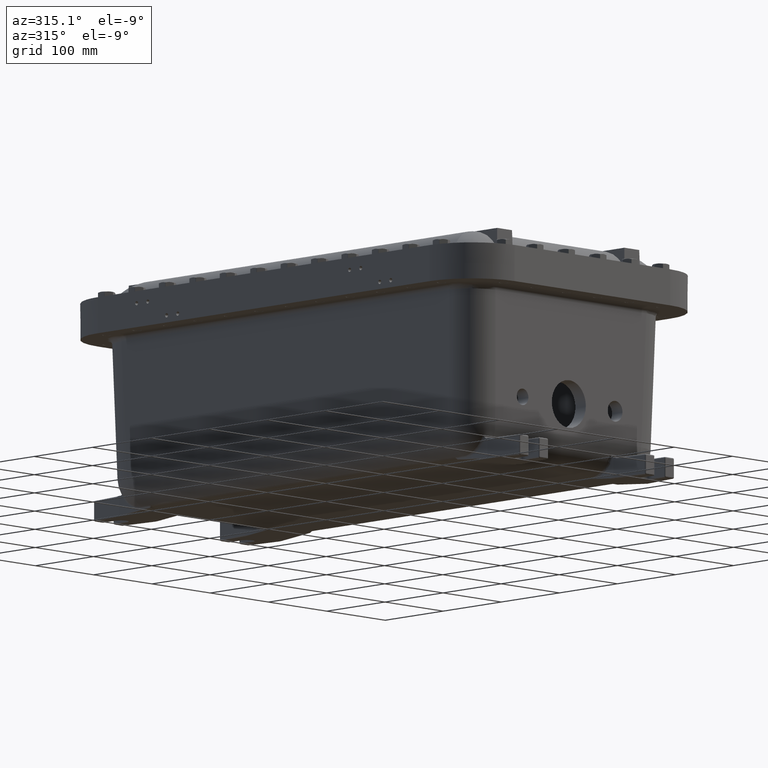
[diagram: clean part render]
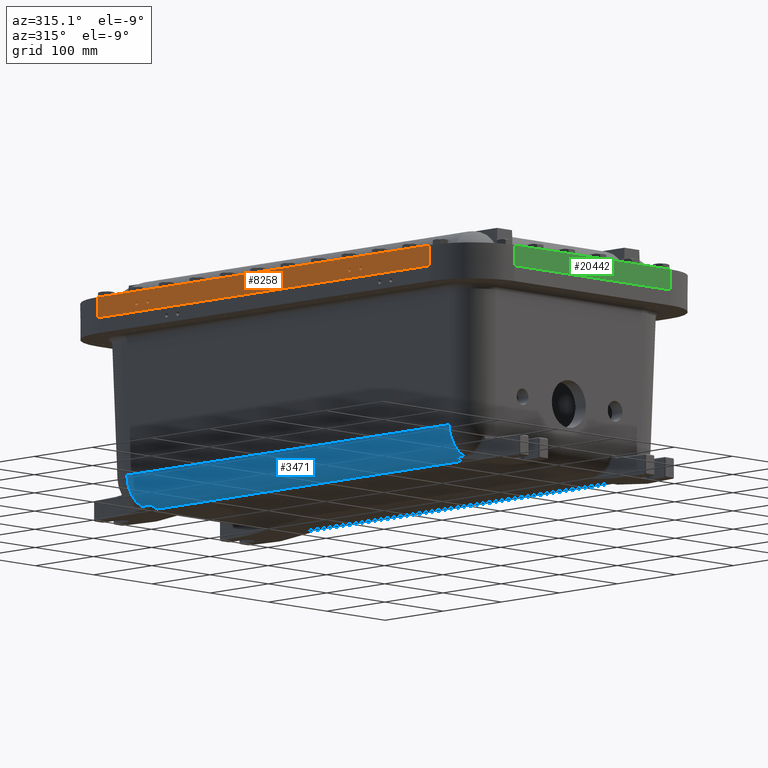
[diagram: same view with three faces highlighted in distinct colors, each labeled with its STEP entity id]
A machine part, auxiliary view with three faces highlighted in distinct colors.
Their STEP definitions:

[orange] entity #8258 — the highlighted planar face has unit normal (-1, 0, 0).
#140 = EDGE_CURVE ( 'NONE', #4846, #16602, #10648, .T. ) ;
#264 = CARTESIAN_POINT ( 'NONE',  ( 8.124700000000002500, -11.25000000000000200, 0.9972578958968254500 ) ) ;
#555 = B_SPLINE_CURVE_WITH_KNOTS ( 'NONE', 3,
 ( #22166, #28860, #10847, #8667 ),
 .UNSPECIFIED., .F., .F.,
 ( 4, 4 ),
 ( 5.551115123125782700E-017, 0.0006411872042488288800 ),
 .UNSPECIFIED. ) ;
#590 = VERTEX_POINT ( 'NONE', #2387 ) ;
#604 = EDGE_CURVE ( 'NONE', #20435, #8030, #28193, .T. ) ;
#630 = ORIENTED_EDGE ( 'NONE', *, *, #1082, .T. ) ;
#637 = LINE ( 'NONE', #9227, #17904 ) ;
#729 = CARTESIAN_POINT ( 'NONE',  ( 8.124700000000002500, -8.609999999999999400, 0.3080499999999987700 ) ) ;
#1082 = EDGE_CURVE ( 'NONE', #20368, #26079, #12315, .T. ) ;
#1127 = DIRECTION ( 'NONE',  ( 1.000000000000000000, 0.0000000000000000000, 0.0000000000000000000 ) ) ;
#1253 = ORIENTED_EDGE ( 'NONE', *, *, #2989, .F. ) ;
#1341 = ORIENTED_EDGE ( 'NONE', *, *, #28760, .T. ) ;
#1346 = EDGE_LOOP ( 'NONE', ( #7888, #13123 ) ) ;
#1383 = DIRECTION ( 'NONE',  ( -1.000000000000000000, -0.0000000000000000000, -0.0000000000000000000 ) ) ;
#1535 = VERTEX_POINT ( 'NONE', #15394 ) ;
#1922 = EDGE_CURVE ( 'NONE', #8030, #1535, #637, .T. ) ;
#1999 = CIRCLE ( 'NONE', #10900, 0.09794999999999998200 ) ;
#2387 = CARTESIAN_POINT ( 'NONE',  ( 8.124700000000002500, 6.578000000000000300, 0.5039500000000017900 ) ) ;
#2989 = EDGE_CURVE ( 'NONE', #14222, #20435, #555, .T. ) ;
#3043 = CARTESIAN_POINT ( 'NONE',  ( 8.124700000000002500, 6.578000000000000300, 0.4060000000000018000 ) ) ;
#3989 = LINE ( 'NONE', #13865, #16716 ) ;
#4174 = EDGE_CURVE ( 'NONE', #26079, #20368, #23198, .T. ) ;
#4188 = AXIS2_PLACEMENT_3D ( 'NONE', #3043, #18781, #5297 ) ;
#4444 = LINE ( 'NONE', #10093, #22443 ) ;
#4558 = CARTESIAN_POINT ( 'NONE',  ( 8.124700000000002500, -11.25000000000000200, 0.9972578958968254500 ) ) ;
#4846 = VERTEX_POINT ( 'NONE', #264 ) ;
#5297 = DIRECTION ( 'NONE',  ( 0.0000000000000000000, 0.0000000000000000000, -1.000000000000000000 ) ) ;
#5714 = FACE_OUTER_BOUND ( 'NONE', #7981, .T. ) ;
#5730 = CIRCLE ( 'NONE', #20326, 0.09794999999999998200 ) ;
#5797 = EDGE_CURVE ( 'NONE', #15181, #25658, #1999, .T. ) ;
#6023 = ORIENTED_EDGE ( 'NONE', *, *, #140, .F. ) ;
#6572 = DIRECTION ( 'NONE',  ( -1.000000000000000000, -0.0000000000000000000, -0.0000000000000000000 ) ) ;
#6848 = CARTESIAN_POINT ( 'NONE',  ( 8.124700000000002500, 11.24999999999999800, 0.0000000000000000000 ) ) ;
#6926 = DIRECTION ( 'NONE',  ( -1.000000000000000000, -0.0000000000000000000, -0.0000000000000000000 ) ) ;
#6957 = CARTESIAN_POINT ( 'NONE',  ( 8.124700000000002500, 5.825500000000000800, 0.4060000000000017500 ) ) ;
#7401 = CARTESIAN_POINT ( 'NONE',  ( 8.124700000000002500, 6.578000000000000300, 0.3080500000000018800 ) ) ;
#7496 = EDGE_CURVE ( 'NONE', #4846, #1535, #3989, .T. ) ;
#7810 = CARTESIAN_POINT ( 'NONE',  ( 8.124700000000002500, 11.24999999999999800, 0.9972578958968260100 ) ) ;
#7831 = PLANE ( 'NONE',  #15284 ) ;
#7888 = ORIENTED_EDGE ( 'NONE', *, *, #5797, .T. ) ;
#7981 = EDGE_LOOP ( 'NONE', ( #10697, #10021, #1253, #17089, #6023, #29096 ) ) ;
#8030 = VERTEX_POINT ( 'NONE', #6848 ) ;
#8258 = ADVANCED_FACE ( 'NONE', ( #23714, #17722, #18416, #11738, #5714 ), #7831, .T. ) ;
#8389 = CARTESIAN_POINT ( 'NONE',  ( 8.124700000000002500, -8.609999999999999400, 0.5039499999999986800 ) ) ;
#8406 = CARTESIAN_POINT ( 'NONE',  ( 8.124700000000002500, -8.609999999999999400, 0.4059999999999987500 ) ) ;
#8667 = CARTESIAN_POINT ( 'NONE',  ( 8.124700000000002500, 11.24999999999999800, 0.9972578958968260100 ) ) ;
#9227 = CARTESIAN_POINT ( 'NONE',  ( 8.124700000000002500, 11.24999999999999800, 0.0000000000000000000 ) ) ;
#9228 = DIRECTION ( 'NONE',  ( 0.0000000000000000000, 0.0000000000000000000, -1.000000000000000000 ) ) ;
#9382 = EDGE_LOOP ( 'NONE', ( #22742, #21740 ) ) ;
#9523 = VECTOR ( 'NONE', #13578, 39.37007874015748100 ) ;
#10021 = ORIENTED_EDGE ( 'NONE', *, *, #604, .F. ) ;
#10052 = DIRECTION ( 'NONE',  ( -1.000000000000000000, -0.0000000000000000000, -0.0000000000000000000 ) ) ;
#10080 = ORIENTED_EDGE ( 'NONE', *, *, #12237, .T. ) ;
#10093 = CARTESIAN_POINT ( 'NONE',  ( 8.124700000000002500, 0.0000000000000000000, 0.9972812285413766900 ) ) ;
#10648 = B_SPLINE_CURVE_WITH_KNOTS ( 'NONE', 3,
 ( #4558, #24772, #13521, #20309 ),
 .UNSPECIFIED., .F., .F.,
 ( 4, 4 ),
 ( 0.0000000000000000000, 0.0006411872042489954100 ),
 .UNSPECIFIED. ) ;
#10690 = DIRECTION ( 'NONE',  ( 0.0000000000000000000, 0.0000000000000000000, -1.000000000000000000 ) ) ;
#10697 = ORIENTED_EDGE ( 'NONE', *, *, #1922, .F. ) ;
#10847 = CARTESIAN_POINT ( 'NONE',  ( 8.124700000000002500, 11.24158548420117000, 0.9972734850759762400 ) ) ;
#10900 = AXIS2_PLACEMENT_3D ( 'NONE', #13412, #29168, #15674 ) ;
#11375 = AXIS2_PLACEMENT_3D ( 'NONE', #6957, #22707, #9228 ) ;
#11494 = DIRECTION ( 'NONE',  ( 0.0000000000000000000, -1.000000000000000000, 0.0000000000000000000 ) ) ;
#11738 = FACE_BOUND ( 'NONE', #1346, .T. ) ;
#11764 = VERTEX_POINT ( 'NONE', #7401 ) ;
#11868 = EDGE_CURVE ( 'NONE', #590, #11764, #16560, .T. ) ;
#12237 = EDGE_CURVE ( 'NONE', #27325, #26122, #20027, .T. ) ;
#12315 = CIRCLE ( 'NONE', #11375, 0.09794999999999998200 ) ;
#12365 = DIRECTION ( 'NONE',  ( -0.0000000000000000000, 1.000000000000000000, -0.0000000000000000000 ) ) ;
#12549 = EDGE_LOOP ( 'NONE', ( #630, #28954 ) ) ;
#13123 = ORIENTED_EDGE ( 'NONE', *, *, #16369, .T. ) ;
#13412 = CARTESIAN_POINT ( 'NONE',  ( 8.124700000000002500, -7.857499999999999000, 0.4059999999999988100 ) ) ;
#13521 = CARTESIAN_POINT ( 'NONE',  ( 8.124700000000002500, -11.23317095030420600, 0.9972812285413770200 ) ) ;
#13578 = DIRECTION ( 'NONE',  ( 0.0000000000000000000, 0.0000000000000000000, -1.000000000000000000 ) ) ;
#13865 = CARTESIAN_POINT ( 'NONE',  ( 8.124700000000002500, -11.25000000000000200, 1.375000000000000000 ) ) ;
#14222 = VERTEX_POINT ( 'NONE', #16280 ) ;
#14380 = EDGE_LOOP ( 'NONE', ( #10080, #1341 ) ) ;
#14859 = CARTESIAN_POINT ( 'NONE',  ( 8.124700000000002500, -8.609999999999999400, 0.4059999999999987500 ) ) ;
#15181 = VERTEX_POINT ( 'NONE', #20315 ) ;
#15284 = AXIS2_PLACEMENT_3D ( 'NONE', #21294, #1127, #16888 ) ;
#15394 = CARTESIAN_POINT ( 'NONE',  ( 8.124700000000002500, -11.25000000000000200, 0.0000000000000000000 ) ) ;
#15674 = DIRECTION ( 'NONE',  ( 0.0000000000000000000, 0.0000000000000000000, -1.000000000000000000 ) ) ;
#16280 = CARTESIAN_POINT ( 'NONE',  ( 8.124700000000002500, 11.22475642006472400, 0.9972812285413766900 ) ) ;
#16369 = EDGE_CURVE ( 'NONE', #25658, #15181, #5730, .T. ) ;
#16520 = CARTESIAN_POINT ( 'NONE',  ( 8.124700000000002500, -11.22475642006472000, 0.9972812285413766900 ) ) ;
#16560 = CIRCLE ( 'NONE', #17066, 0.09794999999999998200 ) ;
#16602 = VERTEX_POINT ( 'NONE', #16520 ) ;
#16716 = VECTOR ( 'NONE', #22824, 39.37007874015748100 ) ;
#16888 = DIRECTION ( 'NONE',  ( 0.0000000000000000000, 0.0000000000000000000, -1.000000000000000000 ) ) ;
#17066 = AXIS2_PLACEMENT_3D ( 'NONE', #23542, #10052, #25819 ) ;
#17089 = ORIENTED_EDGE ( 'NONE', *, *, #23476, .F. ) ;
#17135 = DIRECTION ( 'NONE',  ( 0.0000000000000000000, 0.0000000000000000000, -1.000000000000000000 ) ) ;
#17722 = FACE_BOUND ( 'NONE', #9382, .T. ) ;
#17904 = VECTOR ( 'NONE', #11494, 39.37007874015748100 ) ;
#18416 = FACE_BOUND ( 'NONE', #12549, .T. ) ;
#18781 = DIRECTION ( 'NONE',  ( -1.000000000000000000, -0.0000000000000000000, -0.0000000000000000000 ) ) ;
#19992 = CIRCLE ( 'NONE', #4188, 0.09794999999999998200 ) ;
#20027 = CIRCLE ( 'NONE', #28576, 0.09794999999999998200 ) ;
#20046 = CARTESIAN_POINT ( 'NONE',  ( 8.124700000000002500, -7.857499999999999000, 0.4059999999999988100 ) ) ;
#20268 = AXIS2_PLACEMENT_3D ( 'NONE', #20403, #6926, #22680 ) ;
#20309 = CARTESIAN_POINT ( 'NONE',  ( 8.124700000000002500, -11.22475642006472000, 0.9972812285413766900 ) ) ;
#20315 = CARTESIAN_POINT ( 'NONE',  ( 8.124700000000002500, -7.857499999999999000, 0.3080499999999988200 ) ) ;
#20326 = AXIS2_PLACEMENT_3D ( 'NONE', #20046, #6572, #22344 ) ;
#20368 = VERTEX_POINT ( 'NONE', #27803 ) ;
#20369 = CARTESIAN_POINT ( 'NONE',  ( 8.124700000000002500, 11.24999999999999800, 1.375000000000000000 ) ) ;
#20403 = CARTESIAN_POINT ( 'NONE',  ( 8.124700000000002500, 5.825500000000000800, 0.4060000000000017500 ) ) ;
#20435 = VERTEX_POINT ( 'NONE', #7810 ) ;
#21040 = EDGE_CURVE ( 'NONE', #11764, #590, #19992, .T. ) ;
#21294 = CARTESIAN_POINT ( 'NONE',  ( 8.124700000000002500, 11.24999999999999800, 1.375000000000000000 ) ) ;
#21740 = ORIENTED_EDGE ( 'NONE', *, *, #11868, .T. ) ;
#22166 = CARTESIAN_POINT ( 'NONE',  ( 8.124700000000002500, 11.22475642006472400, 0.9972812285413766900 ) ) ;
#22292 = CIRCLE ( 'NONE', #24575, 0.09794999999999998200 ) ;
#22344 = DIRECTION ( 'NONE',  ( 0.0000000000000000000, 0.0000000000000000000, -1.000000000000000000 ) ) ;
#22443 = VECTOR ( 'NONE', #12365, 39.37007874015748100 ) ;
#22680 = DIRECTION ( 'NONE',  ( 0.0000000000000000000, 0.0000000000000000000, -1.000000000000000000 ) ) ;
#22707 = DIRECTION ( 'NONE',  ( -1.000000000000000000, -0.0000000000000000000, -0.0000000000000000000 ) ) ;
#22742 = ORIENTED_EDGE ( 'NONE', *, *, #21040, .T. ) ;
#22824 = DIRECTION ( 'NONE',  ( 0.0000000000000000000, 0.0000000000000000000, -1.000000000000000000 ) ) ;
#23198 = CIRCLE ( 'NONE', #20268, 0.09794999999999998200 ) ;
#23476 = EDGE_CURVE ( 'NONE', #16602, #14222, #4444, .T. ) ;
#23542 = CARTESIAN_POINT ( 'NONE',  ( 8.124700000000002500, 6.578000000000000300, 0.4060000000000018000 ) ) ;
#23714 = FACE_BOUND ( 'NONE', #14380, .T. ) ;
#24154 = DIRECTION ( 'NONE',  ( -1.000000000000000000, -0.0000000000000000000, -0.0000000000000000000 ) ) ;
#24575 = AXIS2_PLACEMENT_3D ( 'NONE', #14859, #1383, #17135 ) ;
#24772 = CARTESIAN_POINT ( 'NONE',  ( 8.124700000000002500, -11.24158548420117200, 0.9972734850759760200 ) ) ;
#25658 = VERTEX_POINT ( 'NONE', #28517 ) ;
#25819 = DIRECTION ( 'NONE',  ( 0.0000000000000000000, 0.0000000000000000000, -1.000000000000000000 ) ) ;
#26079 = VERTEX_POINT ( 'NONE', #26230 ) ;
#26122 = VERTEX_POINT ( 'NONE', #8389 ) ;
#26230 = CARTESIAN_POINT ( 'NONE',  ( 8.124700000000002500, 5.825500000000000800, 0.5039500000000017900 ) ) ;
#27325 = VERTEX_POINT ( 'NONE', #729 ) ;
#27803 = CARTESIAN_POINT ( 'NONE',  ( 8.124700000000002500, 5.825500000000000800, 0.3080500000000017700 ) ) ;
#28193 = LINE ( 'NONE', #20369, #9523 ) ;
#28517 = CARTESIAN_POINT ( 'NONE',  ( 8.124700000000002500, -7.857499999999999000, 0.5039499999999987900 ) ) ;
#28576 = AXIS2_PLACEMENT_3D ( 'NONE', #8406, #24154, #10690 ) ;
#28760 = EDGE_CURVE ( 'NONE', #26122, #27325, #22292, .T. ) ;
#28860 = CARTESIAN_POINT ( 'NONE',  ( 8.124700000000002500, 11.23317095030420600, 0.9972812285413770200 ) ) ;
#28954 = ORIENTED_EDGE ( 'NONE', *, *, #4174, .T. ) ;
#29096 = ORIENTED_EDGE ( 'NONE', *, *, #7496, .T. ) ;
#29168 = DIRECTION ( 'NONE',  ( -1.000000000000000000, -0.0000000000000000000, -0.0000000000000000000 ) ) ;

[blue] entity #3471 — the highlighted cylindrical surface (edge-blend (fillet) strip) has radius 39.6875 mm, axis along (0, 1, 0).
#195 = VERTEX_POINT ( 'NONE', #27220 ) ;
#506 = VERTEX_POINT ( 'NONE', #13401 ) ;
#839 = CARTESIAN_POINT ( 'NONE',  ( -10.38268960473484100, 5.013536700876004600, -8.997485090870075200 ) ) ;
#1174 = CARTESIAN_POINT ( 'NONE',  ( -10.92316011466990000, 5.514771408683298400, -8.883668153015333900 ) ) ;
#1220 = EDGE_CURVE ( 'NONE', #12536, #506, #9395, .T. ) ;
#1238 = CARTESIAN_POINT ( 'NONE',  ( 10.29591650343275000, 5.411572765880782400, -8.921738774868613200 ) ) ;
#1433 = CARTESIAN_POINT ( 'NONE',  ( -10.35241722697599300, 5.482211468340281600, -8.896578885300384000 ) ) ;
#2208 = EDGE_CURVE ( 'NONE', #7212, #25938, #6856, .T. ) ;
#2713 = CARTESIAN_POINT ( 'NONE',  ( 10.33108457764920000, 5.204789350859371700, -8.974807760042656600 ) ) ;
#2924 = EDGE_LOOP ( 'NONE', ( #28750, #3646, #17999, #9727, #16263, #8634, #6948, #26471, #17242, #14993 ) ) ;
#3104 = CARTESIAN_POINT ( 'NONE',  ( -10.36085580598931700, 5.101424483965397300, -8.990189405221141100 ) ) ;
#3373 = CARTESIAN_POINT ( 'NONE',  ( 10.42135737594988000, 5.505468735569842000, -8.887438986683942900 ) ) ;
#3471 = ADVANCED_FACE ( 'NONE', ( #14078 ), #13369, .T. ) ;
#3474 = CARTESIAN_POINT ( 'NONE',  ( 10.28994311465688200, 5.382062527573166800, -8.931128921507534500 ) ) ;
#3646 = ORIENTED_EDGE ( 'NONE', *, *, #1220, .T. ) ;
#3655 = CARTESIAN_POINT ( 'NONE',  ( -10.38034516606546600, 5.496005847947416500, -8.891210874591610700 ) ) ;
#3920 = CARTESIAN_POINT ( 'NONE',  ( 10.43201303448690200, 5.505822155975402600, -8.887296949790451700 ) ) ;
#4384 = DIRECTION ( 'NONE',  ( -1.000000000000000000, 0.0000000000000000000, 0.0000000000000000000 ) ) ;
#4802 = B_SPLINE_CURVE_WITH_KNOTS ( 'NONE', 3,
 ( #12413, #25898, #14656, #1174 ),
 .UNSPECIFIED., .F., .F.,
 ( 4, 4 ),
 ( 0.0000000000000000000, 0.01247783751188180600 ),
 .UNSPECIFIED. ) ;
#4956 = CARTESIAN_POINT ( 'NONE',  ( 10.36095780536193300, 5.101062178916392600, -8.990233632779645500 ) ) ;
#5358 = CARTESIAN_POINT ( 'NONE',  ( -10.33107051540961900, 5.204838867395361400, -8.974797771622874600 ) ) ;
#5404 = EDGE_CURVE ( 'NONE', #25938, #195, #18916, .T. ) ;
#5516 = DIRECTION ( 'NONE',  ( -1.000000000000000000, 0.0000000000000000000, 0.0000000000000000000 ) ) ;
#5644 = CARTESIAN_POINT ( 'NONE',  ( 10.39038266825438200, 5.499380249436400800, -8.889871532799574500 ) ) ;
#5733 = LINE ( 'NONE', #7942, #29015 ) ;
#5734 = CARTESIAN_POINT ( 'NONE',  ( 10.29129873323172400, 5.351524952531820900, -8.940170097487495600 ) ) ;
#5820 = CARTESIAN_POINT ( 'NONE',  ( -10.29001692197456900, 5.361650166394818800, -8.937248816488160900 ) ) ;
#5921 = CARTESIAN_POINT ( 'NONE',  ( -10.41091630549595600, 5.504103657496034300, -8.887988627914422700 ) ) ;
#5964 = DIRECTION ( 'NONE',  ( 1.000000000000000000, 0.0000000000000000000, 0.0000000000000000000 ) ) ;
#6856 = B_SPLINE_CURVE_WITH_KNOTS ( 'NONE', 3,
 ( #19142, #3373, #16901, #5644, #21405, #7932, #23686, #10207, #25963, #12465, #28215, #14710, #1238, #16995, #3474, #19233, #5734, #21510 ),
 .UNSPECIFIED., .F., .F.,
 ( 4, 2, 2, 2, 2, 2, 2, 2, 4 ),
 ( 0.0000000000000000000, 0.0008038895631116189800, 0.001607779126223238000, 0.002411668689334857000, 0.003215558252446475900, 0.004019447815558094800, 0.004823337378669714100, 0.005627226941781332500, 0.006431116504892951800 ),
 .UNSPECIFIED. ) ;
#6948 = ORIENTED_EDGE ( 'NONE', *, *, #20422, .T. ) ;
#7030 = CARTESIAN_POINT ( 'NONE',  ( 10.29381355921939800, 5.341530378864350200, -8.942947631781942500 ) ) ;
#7212 = VERTEX_POINT ( 'NONE', #3920 ) ;
#7223 = CARTESIAN_POINT ( 'NONE',  ( 10.38671301931691100, 4.995736132181055400, -8.998713115743360200 ) ) ;
#7545 = CARTESIAN_POINT ( 'NONE',  ( -10.39272711507940400, 4.941455234863738600, -8.999999999999998200 ) ) ;
#7642 = CARTESIAN_POINT ( 'NONE',  ( -10.30239882575324700, 5.307410292922853000, -8.952429747976703200 ) ) ;
#7932 = CARTESIAN_POINT ( 'NONE',  ( 10.36134047493725800, 5.487395350710455600, -8.894574498851197200 ) ) ;
#7942 = CARTESIAN_POINT ( 'NONE',  ( -10.92316011466990000, 6.485124684944201700, -7.478401481731051300 ) ) ;
#8125 = CARTESIAN_POINT ( 'NONE',  ( -10.29114362243612000, 5.392064922967612100, -8.928016527318938200 ) ) ;
#8214 = CARTESIAN_POINT ( 'NONE',  ( -10.43201303448690700, 5.505822155975402600, -8.887296949790451700 ) ) ;
#8333 = EDGE_CURVE ( 'NONE', #506, #8612, #12585, .T. ) ;
#8563 = VERTEX_POINT ( 'NONE', #13502 ) ;
#8612 = VERTEX_POINT ( 'NONE', #9272 ) ;
#8634 = ORIENTED_EDGE ( 'NONE', *, *, #25597, .F. ) ;
#9272 = CARTESIAN_POINT ( 'NONE',  ( -10.43201303448690700, 5.505822155975402600, -8.887296949790451700 ) ) ;
#9395 = B_SPLINE_CURVE_WITH_KNOTS ( 'NONE', 3,
 ( #23294, #7545, #27833, #14336, #839, #16618, #3104, #18846, #5358, #21122, #7642, #23395 ),
 .UNSPECIFIED., .F., .F.,
 ( 4, 2, 2, 2, 2, 4 ),
 ( 0.0000000000000000000, 0.001385781347999420700, 0.002771562695998841400, 0.005543125391997559700, 0.008314688087996277600, 0.01108625078399499600 ),
 .UNSPECIFIED. ) ;
#9497 = CARTESIAN_POINT ( 'NONE',  ( 10.39272711507939700, 4.923160114669893300, -9.000000000000000000 ) ) ;
#9727 = ORIENTED_EDGE ( 'NONE', *, *, #16109, .T. ) ;
#10207 = CARTESIAN_POINT ( 'NONE',  ( 10.33561304536961100, 5.469849966879111800, -8.901255368560471800 ) ) ;
#10390 = CARTESIAN_POINT ( 'NONE',  ( -10.29956450203506400, 5.421196163373300800, -8.918531867072228900 ) ) ;
#10760 = CARTESIAN_POINT ( 'NONE',  ( 10.59566572775540100, 5.511250089033218600, -8.885115505998619800 ) ) ;
#11651 = CARTESIAN_POINT ( 'NONE',  ( -10.39272711507939900, 4.923160114669893300, -9.000000000000000000 ) ) ;
#11663 = CIRCLE ( 'NONE', #26259, 1.562499999999999600 ) ;
#11677 = CARTESIAN_POINT ( 'NONE',  ( 10.29381355921939800, 5.341530378864350200, -8.942947631781942500 ) ) ;
#12413 = CARTESIAN_POINT ( 'NONE',  ( -10.43201303448690700, 5.505822155975402600, -8.887296949790451700 ) ) ;
#12465 = CARTESIAN_POINT ( 'NONE',  ( 10.31458020512251700, 5.447369413346779200, -8.909464374830193400 ) ) ;
#12536 = VERTEX_POINT ( 'NONE', #11651 ) ;
#12585 = B_SPLINE_CURVE_WITH_KNOTS ( 'NONE', 3,
 ( #21502, #17079, #5820, #21594, #8125, #23862, #10390, #26145, #12640, #28397, #14904, #1433, #17180, #3655, #19407, #5921, #21683, #8214 ),
 .UNSPECIFIED., .F., .F.,
 ( 4, 2, 2, 2, 2, 2, 2, 2, 4 ),
 ( 0.0000000000000000000, 0.0008079710161710745600, 0.001615942032342149100, 0.002423913048513223600, 0.003231884064684298300, 0.004039855080855372900, 0.004847826097026447200, 0.005655797113197522300, 0.006463768129368596500 ),
 .UNSPECIFIED. ) ;
#12640 = CARTESIAN_POINT ( 'NONE',  ( -10.31459263110841500, 5.447383169046125000, -8.909459371604871300 ) ) ;
#13369 = CYLINDRICAL_SURFACE ( 'NONE', #13854, 1.562499999999999600 ) ;
#13401 = CARTESIAN_POINT ( 'NONE',  ( -10.29381355921940300, 5.341530378864350200, -8.942947631781942500 ) ) ;
#13502 = CARTESIAN_POINT ( 'NONE',  ( 10.92316011466989400, 6.485124684944201700, -7.478401481731051300 ) ) ;
#13854 = AXIS2_PLACEMENT_3D ( 'NONE', #19535, #5964, #17309 ) ;
#14078 = FACE_OUTER_BOUND ( 'NONE', #2924, .T. ) ;
#14336 = CARTESIAN_POINT ( 'NONE',  ( -10.38623110031781700, 4.995607617682137100, -8.998423567084474300 ) ) ;
#14467 = VERTEX_POINT ( 'NONE', #23836 ) ;
#14656 = CARTESIAN_POINT ( 'NONE',  ( -10.75940751706565200, 5.513849086098490600, -8.884045464918351300 ) ) ;
#14710 = CARTESIAN_POINT ( 'NONE',  ( 10.29956180070240100, 5.421185893238766000, -8.918535210791287000 ) ) ;
#14750 = CIRCLE ( 'NONE', #24006, 1.562499999999999600 ) ;
#14904 = CARTESIAN_POINT ( 'NONE',  ( -10.33566325492795500, 5.469893921891066500, -8.901238963617334600 ) ) ;
#14993 = ORIENTED_EDGE ( 'NONE', *, *, #5404, .T. ) ;
#16109 = EDGE_CURVE ( 'NONE', #8612, #14467, #4802, .T. ) ;
#16206 = CARTESIAN_POINT ( 'NONE',  ( 10.31171124819991600, 5.273313808871713500, -8.960662028873118200 ) ) ;
#16263 = ORIENTED_EDGE ( 'NONE', *, *, #19305, .F. ) ;
#16540 = VERTEX_POINT ( 'NONE', #27543 ) ;
#16618 = CARTESIAN_POINT ( 'NONE',  ( -10.37064735213920300, 5.066667449893341100, -8.993800915318690400 ) ) ;
#16711 = EDGE_CURVE ( 'NONE', #12536, #195, #28647, .T. ) ;
#16806 = CARTESIAN_POINT ( 'NONE',  ( 10.92316011466989400, 4.923160114669893300, -9.000000000000000000 ) ) ;
#16901 = CARTESIAN_POINT ( 'NONE',  ( 10.41090169438984200, 5.504103305354943700, -8.887988787338114700 ) ) ;
#16995 = CARTESIAN_POINT ( 'NONE',  ( 10.29113578594050600, 5.392026166032891900, -8.928028860695290400 ) ) ;
#17079 = CARTESIAN_POINT ( 'NONE',  ( -10.29129860691060300, 5.351525454564882300, -8.940169957970383100 ) ) ;
#17180 = CARTESIAN_POINT ( 'NONE',  ( -10.36136526450556200, 5.487410019243856900, -8.894568833730392800 ) ) ;
#17242 = ORIENTED_EDGE ( 'NONE', *, *, #2208, .T. ) ;
#17309 = DIRECTION ( 'NONE',  ( 0.0000000000000000000, 0.0000000000000000000, -1.000000000000000000 ) ) ;
#17887 = CARTESIAN_POINT ( 'NONE',  ( -10.92316011466990000, 4.923160114669893300, -7.437499999999999100 ) ) ;
#17999 = ORIENTED_EDGE ( 'NONE', *, *, #8333, .T. ) ;
#18444 = CARTESIAN_POINT ( 'NONE',  ( 10.34116320907240900, 5.170400851228665200, -8.980711876902885700 ) ) ;
#18846 = CARTESIAN_POINT ( 'NONE',  ( -10.34112599485899500, 5.170526163198681000, -8.980689104575830600 ) ) ;
#18916 = B_SPLINE_CURVE_WITH_KNOTS ( 'NONE', 3,
 ( #11677, #25165, #16206, #2713, #18444, #4956, #20699, #7223, #22982, #9497 ),
 .UNSPECIFIED., .F., .F.,
 ( 4, 2, 2, 2, 4 ),
 ( 0.0000000000000000000, 0.002766084064172353900, 0.005532168128344707800, 0.008298252192517062100, 0.01106433625668941600 ),
 .UNSPECIFIED. ) ;
#19021 = CARTESIAN_POINT ( 'NONE',  ( 10.92316011466989400, 4.923160114669893300, -7.437499999999999100 ) ) ;
#19142 = CARTESIAN_POINT ( 'NONE',  ( 10.43201303448690200, 5.505822155975402600, -8.887296949790451700 ) ) ;
#19233 = CARTESIAN_POINT ( 'NONE',  ( 10.29001386341346000, 5.361740302531662100, -8.937222040428604700 ) ) ;
#19305 = EDGE_CURVE ( 'NONE', #20340, #14467, #11663, .T. ) ;
#19407 = CARTESIAN_POINT ( 'NONE',  ( -10.39045607279804000, 5.499400143754025200, -8.889863621322694700 ) ) ;
#19535 = CARTESIAN_POINT ( 'NONE',  ( 0.0000000000000000000, 4.923160114669893300, -7.437499999999999100 ) ) ;
#20137 = DIRECTION ( 'NONE',  ( 0.0000000000000000000, 0.0000000000000000000, 1.000000000000000000 ) ) ;
#20340 = VERTEX_POINT ( 'NONE', #25546 ) ;
#20422 = EDGE_CURVE ( 'NONE', #8563, #16540, #14750, .T. ) ;
#20699 = CARTESIAN_POINT ( 'NONE',  ( 10.37076311242867800, 5.066205481950382800, -8.993839196315013500 ) ) ;
#21122 = CARTESIAN_POINT ( 'NONE',  ( -10.31171964869336400, 5.273284318286718200, -8.960667883201097100 ) ) ;
#21279 = DIRECTION ( 'NONE',  ( 0.0000000000000000000, 0.0000000000000000000, 1.000000000000000000 ) ) ;
#21405 = CARTESIAN_POINT ( 'NONE',  ( 10.38028557669223400, 5.495982286715333000, -8.891220143633349300 ) ) ;
#21502 = CARTESIAN_POINT ( 'NONE',  ( -10.29381355921940300, 5.341530378864350200, -8.942947631781942500 ) ) ;
#21510 = CARTESIAN_POINT ( 'NONE',  ( 10.29381355921939800, 5.341530378864350200, -8.942947631781942500 ) ) ;
#21594 = CARTESIAN_POINT ( 'NONE',  ( -10.28994029772165100, 5.382085832099869900, -8.931122182448005400 ) ) ;
#21683 = CARTESIAN_POINT ( 'NONE',  ( -10.42135657673396800, 5.505468709061935000, -8.887438997337264700 ) ) ;
#21967 = CARTESIAN_POINT ( 'NONE',  ( 10.75940751706564800, 5.513849086098491400, -8.884045464918351300 ) ) ;
#22167 = EDGE_CURVE ( 'NONE', #16540, #7212, #28161, .T. ) ;
#22652 = VECTOR ( 'NONE', #25868, 39.37007874015748100 ) ;
#22982 = CARTESIAN_POINT ( 'NONE',  ( 10.39272711507939600, 4.960057687291540100, -9.000000000000000000 ) ) ;
#23294 = CARTESIAN_POINT ( 'NONE',  ( -10.39272711507939900, 4.923160114669893300, -9.000000000000000000 ) ) ;
#23395 = CARTESIAN_POINT ( 'NONE',  ( -10.29381355921940300, 5.341530378864350200, -8.942947631781942500 ) ) ;
#23686 = CARTESIAN_POINT ( 'NONE',  ( 10.35234116670974400, 5.482162536644736400, -8.896597620354581800 ) ) ;
#23700 = DIRECTION ( 'NONE',  ( -1.000000000000000000, -0.0000000000000000000, -0.0000000000000000000 ) ) ;
#23836 = CARTESIAN_POINT ( 'NONE',  ( -10.92316011466990000, 5.514771408683298400, -8.883668153015333900 ) ) ;
#23862 = CARTESIAN_POINT ( 'NONE',  ( -10.29591804692841400, 5.411572347076468500, -8.921738770781592700 ) ) ;
#24006 = AXIS2_PLACEMENT_3D ( 'NONE', #19021, #5516, #21279 ) ;
#25165 = CARTESIAN_POINT ( 'NONE',  ( 10.30239068846392500, 5.307442632630632300, -8.952420760635126500 ) ) ;
#25546 = CARTESIAN_POINT ( 'NONE',  ( -10.92316011466990000, 6.485124684944201700, -7.478401481731051300 ) ) ;
#25597 = EDGE_CURVE ( 'NONE', #8563, #20340, #5733, .T. ) ;
#25868 = DIRECTION ( 'NONE',  ( 1.000000000000000000, -0.0000000000000000000, -0.0000000000000000000 ) ) ;
#25898 = CARTESIAN_POINT ( 'NONE',  ( -10.59566572775540500, 5.511250089033218600, -8.885115505998619800 ) ) ;
#25938 = VERTEX_POINT ( 'NONE', #7030 ) ;
#25963 = CARTESIAN_POINT ( 'NONE',  ( 10.32805075219741100, 5.462906098910969500, -8.903838563253447800 ) ) ;
#26145 = CARTESIAN_POINT ( 'NONE',  ( -10.30890156196678700, 5.439048106790504100, -8.912408429929573800 ) ) ;
#26259 = AXIS2_PLACEMENT_3D ( 'NONE', #17887, #4384, #20137 ) ;
#26471 = ORIENTED_EDGE ( 'NONE', *, *, #22167, .T. ) ;
#26514 = CARTESIAN_POINT ( 'NONE',  ( 10.43201303448690200, 5.505822155975402600, -8.887296949790451700 ) ) ;
#27220 = CARTESIAN_POINT ( 'NONE',  ( 10.39272711507939700, 4.923160114669893300, -9.000000000000000000 ) ) ;
#27543 = CARTESIAN_POINT ( 'NONE',  ( 10.92316011466989400, 5.514771408683298400, -8.883668153015333900 ) ) ;
#27833 = CARTESIAN_POINT ( 'NONE',  ( -10.39126772882533200, 4.959586581486756400, -8.999679290442577100 ) ) ;
#28161 = B_SPLINE_CURVE_WITH_KNOTS ( 'NONE', 3,
 ( #28676, #21967, #10760, #26514 ),
 .UNSPECIFIED., .F., .F.,
 ( 4, 4 ),
 ( 0.0000000000000000000, 0.01247792517392788200 ),
 .UNSPECIFIED. ) ;
#28215 = CARTESIAN_POINT ( 'NONE',  ( 10.30887651157735600, 5.439005301979204200, -8.912423291040097300 ) ) ;
#28397 = CARTESIAN_POINT ( 'NONE',  ( -10.32803184621849900, 5.462884869027024400, -8.903846272859549800 ) ) ;
#28647 = LINE ( 'NONE', #16806, #22652 ) ;
#28676 = CARTESIAN_POINT ( 'NONE',  ( 10.92316011466989400, 5.514771408683298400, -8.883668153015333900 ) ) ;
#28750 = ORIENTED_EDGE ( 'NONE', *, *, #16711, .F. ) ;
#29015 = VECTOR ( 'NONE', #23700, 39.37007874015748100 ) ;

[green] entity #20442 — the highlighted planar face has unit normal (0, -1, 0).
#266 = VERTEX_POINT ( 'NONE', #5424 ) ;
#267 = EDGE_CURVE ( 'NONE', #25117, #19427, #3873, .T. ) ;
#436 = CARTESIAN_POINT ( 'NONE',  ( 5.241385484067890800, 14.12499999999999800, 0.9972095793841614400 ) ) ;
#1008 = DIRECTION ( 'NONE',  ( 0.0000000000000000000, 0.0000000000000000000, -1.000000000000000000 ) ) ;
#2305 = ORIENTED_EDGE ( 'NONE', *, *, #27958, .F. ) ;
#2322 = AXIS2_PLACEMENT_3D ( 'NONE', #28085, #3348, #19114 ) ;
#2709 = CARTESIAN_POINT ( 'NONE',  ( 5.233070950260742600, 14.12499999999999800, 0.9972172311550640000 ) ) ;
#3348 = DIRECTION ( 'NONE',  ( -0.0000000000000000000, 1.000000000000000000, 0.0000000000000000000 ) ) ;
#3533 = B_SPLINE_CURVE_WITH_KNOTS ( 'NONE', 3,
 ( #4857, #436, #2709, #18440 ),
 .UNSPECIFIED., .F., .F.,
 ( 4, 4 ),
 ( 0.0000000000000000000, 0.0006335672009364619400 ),
 .UNSPECIFIED. ) ;
#3873 = LINE ( 'NONE', #23458, #27158 ) ;
#4564 = EDGE_LOOP ( 'NONE', ( #26205, #26161, #17715, #15692, #2305, #18115 ) ) ;
#4857 = CARTESIAN_POINT ( 'NONE',  ( 5.249700000000002500, 14.12499999999999800, 0.9971941782436365400 ) ) ;
#5424 = CARTESIAN_POINT ( 'NONE',  ( 5.249700000000002500, 14.12499999999999800, 0.0000000000000000000 ) ) ;
#5949 = CARTESIAN_POINT ( 'NONE',  ( -5.250300000000002000, 14.12499999999999800, 0.0000000000000000000 ) ) ;
#9409 = CARTESIAN_POINT ( 'NONE',  ( -5.250300000000002000, 14.12499999999999800, 0.9971930533693055300 ) ) ;
#9635 = VECTOR ( 'NONE', #15119, 39.37007874015748100 ) ;
#9799 = DIRECTION ( 'NONE',  ( -1.000000000000000000, -0.0000000000000000000, -0.0000000000000000000 ) ) ;
#10381 = LINE ( 'NONE', #23961, #21630 ) ;
#10766 = VERTEX_POINT ( 'NONE', #21144 ) ;
#11270 = EDGE_CURVE ( 'NONE', #28635, #25117, #23628, .T. ) ;
#11369 = EDGE_CURVE ( 'NONE', #10766, #28635, #13741, .T. ) ;
#13741 = LINE ( 'NONE', #27729, #19022 ) ;
#15119 = DIRECTION ( 'NONE',  ( 1.000000000000000000, 0.0000000000000000000, 0.0000000000000000000 ) ) ;
#15692 = ORIENTED_EDGE ( 'NONE', *, *, #11369, .F. ) ;
#16743 = CARTESIAN_POINT ( 'NONE',  ( -5.224756420064724500, 14.12499999999999800, 0.9972172311550635500 ) ) ;
#16872 = PLANE ( 'NONE',  #2322 ) ;
#17715 = ORIENTED_EDGE ( 'NONE', *, *, #11270, .F. ) ;
#18115 = ORIENTED_EDGE ( 'NONE', *, *, #25075, .T. ) ;
#18296 = VERTEX_POINT ( 'NONE', #20098 ) ;
#18354 = CARTESIAN_POINT ( 'NONE',  ( -5.233270950523985800, 14.12499999999999800, 0.9972172311550636700 ) ) ;
#18440 = CARTESIAN_POINT ( 'NONE',  ( 5.224756420064726300, 14.12499999999999800, 0.9972172311550640000 ) ) ;
#19022 = VECTOR ( 'NONE', #9799, 39.37007874015748100 ) ;
#19114 = DIRECTION ( 'NONE',  ( 0.0000000000000000000, -0.0000000000000000000, 1.000000000000000000 ) ) ;
#19427 = VERTEX_POINT ( 'NONE', #27243 ) ;
#19494 = CARTESIAN_POINT ( 'NONE',  ( -5.250300000000002000, 14.12499999999999800, 0.9971930533693055300 ) ) ;
#20098 = CARTESIAN_POINT ( 'NONE',  ( 5.249700000000002500, 14.12499999999999800, 0.9971941782436365400 ) ) ;
#20442 = ADVANCED_FACE ( 'NONE', ( #26049 ), #16872, .T. ) ;
#20616 = CARTESIAN_POINT ( 'NONE',  ( -5.241785484865230800, 14.12499999999999800, 0.9972092076704175400 ) ) ;
#21144 = CARTESIAN_POINT ( 'NONE',  ( 5.224756420064726300, 14.12499999999999800, 0.9972172311550640000 ) ) ;
#21600 = LINE ( 'NONE', #5949, #9635 ) ;
#21630 = VECTOR ( 'NONE', #26234, 39.37007874015748100 ) ;
#22891 = CARTESIAN_POINT ( 'NONE',  ( -5.224756420064724500, 14.12499999999999800, 0.9972172311550635500 ) ) ;
#23458 = CARTESIAN_POINT ( 'NONE',  ( -5.250300000000002000, 14.12499999999999800, 1.375000000000000000 ) ) ;
#23628 = B_SPLINE_CURVE_WITH_KNOTS ( 'NONE', 3,
 ( #22891, #18354, #20616, #9409 ),
 .UNSPECIFIED., .F., .F.,
 ( 4, 4 ),
 ( 0.0000000000000000000, 0.0006488072209957261100 ),
 .UNSPECIFIED. ) ;
#23961 = CARTESIAN_POINT ( 'NONE',  ( 5.249700000000002500, 14.12499999999999800, 1.375000000000000000 ) ) ;
#25075 = EDGE_CURVE ( 'NONE', #18296, #266, #10381, .T. ) ;
#25117 = VERTEX_POINT ( 'NONE', #19494 ) ;
#25692 = EDGE_CURVE ( 'NONE', #19427, #266, #21600, .T. ) ;
#26049 = FACE_OUTER_BOUND ( 'NONE', #4564, .T. ) ;
#26161 = ORIENTED_EDGE ( 'NONE', *, *, #267, .F. ) ;
#26205 = ORIENTED_EDGE ( 'NONE', *, *, #25692, .F. ) ;
#26234 = DIRECTION ( 'NONE',  ( 0.0000000000000000000, 0.0000000000000000000, -1.000000000000000000 ) ) ;
#27158 = VECTOR ( 'NONE', #1008, 39.37007874015748100 ) ;
#27243 = CARTESIAN_POINT ( 'NONE',  ( -5.250300000000002000, 14.12499999999999800, 0.0000000000000000000 ) ) ;
#27729 = CARTESIAN_POINT ( 'NONE',  ( 0.0000000000000000000, 14.12499999999999800, 0.9972172311550640000 ) ) ;
#27958 = EDGE_CURVE ( 'NONE', #18296, #10766, #3533, .T. ) ;
#28085 = CARTESIAN_POINT ( 'NONE',  ( -5.250300000000002000, 14.12499999999999800, 1.375000000000000000 ) ) ;
#28635 = VERTEX_POINT ( 'NONE', #16743 ) ;